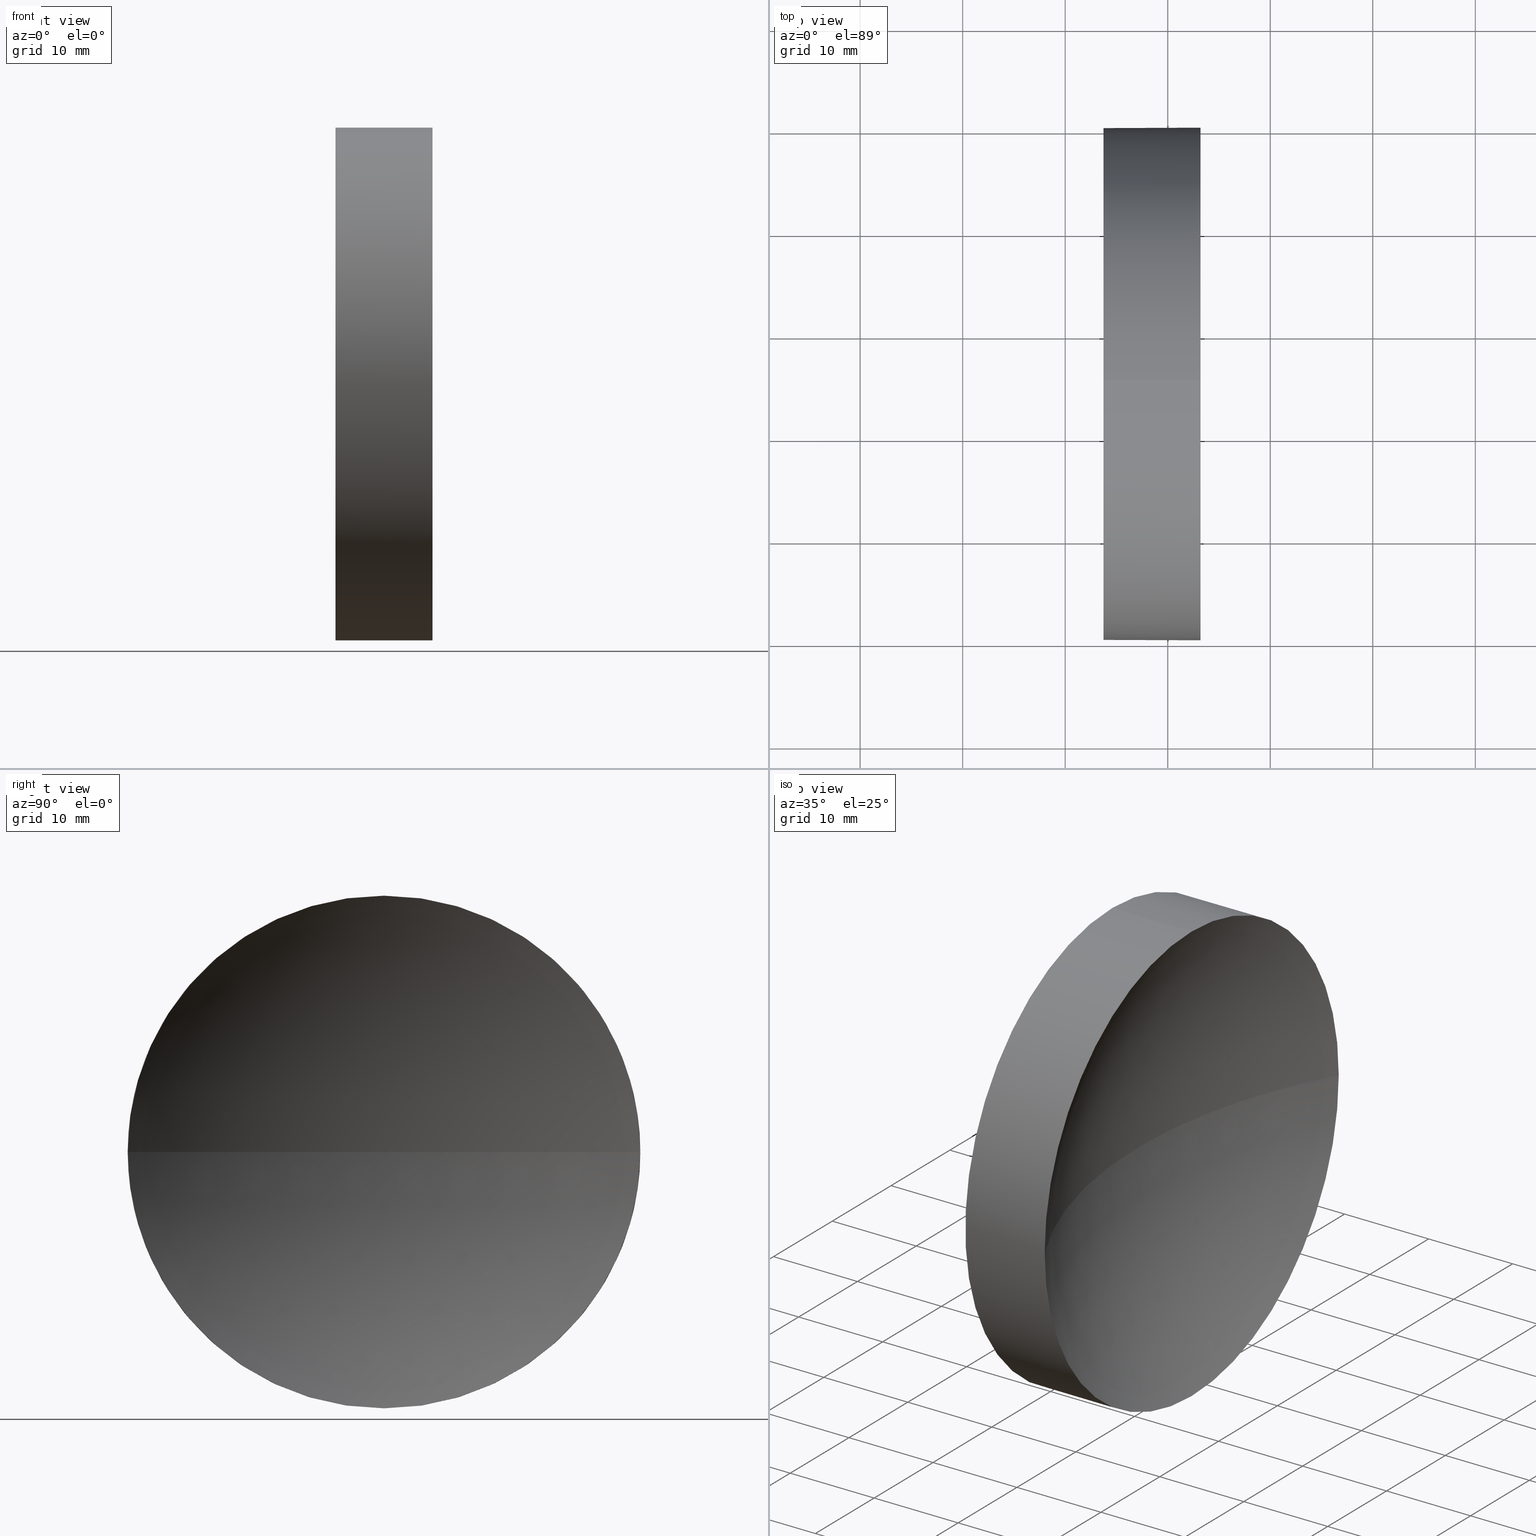
[diagram: canonical four-view strip — front | top / right | iso, engineering-drawing reading convention]
A machine part, canonical four-view strip (front | top / right | iso — engineering-drawing reading convention). The complete STEP part file that produces these views, byte-faithful:
ISO-10303-21;
HEADER;
FILE_DESCRIPTION (( 'STEP AP214' ),
    '1' );
FILE_NAME ('120056.STEP',
    '2019-06-18T01:38:16',
    ( '' ),
    ( '' ),
    'SwSTEP 2.0',
    'SolidWorks 2016',
    '' );
FILE_SCHEMA (( 'AUTOMOTIVE_DESIGN' ));
ENDSEC;

DATA;
#1 = CARTESIAN_POINT ( 'NONE',  ( 123.1943776569798400, 65.15563045701519200, 0.0000000000000000000 ) ) ;
#2 = EDGE_CURVE ( 'NONE', #184, #145, #147, .T. ) ;
#3 = ORIENTED_EDGE ( 'NONE', *, *, #128, .T. ) ;
#4 = DIRECTION ( 'NONE',  ( 0.0000000000000000000, -1.000000000000000000, 0.0000000000000000000 ) ) ;
#5 = LINE ( 'NONE', #47, #75 ) ;
#6 = STYLED_ITEM ( 'NONE', ( #46 ), #36 ) ;
#7 = ADVANCED_FACE ( 'NONE', ( #166 ), #55, .F. ) ;
#8 = AXIS2_PLACEMENT_3D ( 'NONE', #92, #180, #165 ) ;
#9 = SURFACE_SIDE_STYLE ('',( #34 ) ) ;
#10 = ADVANCED_FACE ( 'NONE', ( #50 ), #136, .F. ) ;
#11 = EDGE_LOOP ( 'NONE', ( #121, #24, #169, #28 ) ) ;
#12 = SURFACE_STYLE_USAGE ( .BOTH. , #9 ) ;
#13 = CIRCLE ( 'NONE', #8, 51.64000000000002200 ) ;
#14 = SURFACE_STYLE_FILL_AREA ( #22 ) ;
#15 = CARTESIAN_POINT ( 'NONE',  ( 105.6218371238301200, 65.15563045701519200, 0.0000000000000000000 ) ) ;
#16 = DIRECTION ( 'NONE',  ( -1.000000000000000000, -0.0000000000000000000, -0.0000000000000000000 ) ) ;
#17 = DIRECTION ( 'NONE',  ( 0.0000000000000000000, 0.0000000000000000000, 1.000000000000000000 ) ) ;
#18 =( GEOMETRIC_REPRESENTATION_CONTEXT ( 3 ) GLOBAL_UNCERTAINTY_ASSIGNED_CONTEXT ( ( #124 ) ) GLOBAL_UNIT_ASSIGNED_CONTEXT ( ( #64, #19, #132 ) ) REPRESENTATION_CONTEXT ( 'NONE', 'WORKASPACE' ) );
#19 =( NAMED_UNIT ( * ) PLANE_ANGLE_UNIT ( ) SI_UNIT ( $, .RADIAN. ) );
#20 = STYLED_ITEM ( 'NONE', ( #149 ), #39 ) ;
#21 = MECHANICAL_DESIGN_GEOMETRIC_PRESENTATION_REPRESENTATION (  '', ( #6 ), #18 ) ;
#22 = FILL_AREA_STYLE ('',( #159 ) ) ;
#23 = ORIENTED_EDGE ( 'NONE', *, *, #2, .F. ) ;
#24 = ORIENTED_EDGE ( 'NONE', *, *, #128, .F. ) ;
#25 = PRESENTATION_LAYER_ASSIGNMENT (  '', '', ( #20 ) ) ;
#26 = EDGE_CURVE ( 'NONE', #145, #160, #84, .T. ) ;
#27 =( NAMED_UNIT ( * ) PLANE_ANGLE_UNIT ( ) SI_UNIT ( $, .RADIAN. ) );
#28 = ORIENTED_EDGE ( 'NONE', *, *, #120, .T. ) ;
#29 = APPLICATION_CONTEXT ( 'automotive_design' ) ;
#30 = AXIS2_PLACEMENT_3D ( 'NONE', #72, #155, #168 ) ;
#31 = DIRECTION ( 'NONE',  ( 1.000000000000000000, 0.0000000000000000000, 0.0000000000000000000 ) ) ;
#32 = PLANE ( 'NONE',  #106 ) ;
#33 = DIRECTION ( 'NONE',  ( -1.000000000000000000, -0.0000000000000000000, -0.0000000000000000000 ) ) ;
#34 = SURFACE_STYLE_FILL_AREA ( #162 ) ;
#35 = EDGE_LOOP ( 'NONE', ( #74, #57, #65, #91, #3 ) ) ;
#36 = MANIFOLD_SOLID_BREP ( '��ת1', #158 ) ;
#37 = CARTESIAN_POINT ( 'NONE',  ( 113.7394371346435000, 65.15563045701519200, 0.0000000000000000000 ) ) ;
#38 = FACE_OUTER_BOUND ( 'NONE', #97, .T. ) ;
#39 = ADVANCED_BREP_SHAPE_REPRESENTATION ( '120056', ( #36, #163 ), #113 ) ;
#40 = AXIS2_PLACEMENT_3D ( 'NONE', #112, #95, #126 ) ;
#41 = DIRECTION ( 'NONE',  ( -1.000000000000000000, -0.0000000000000000000, -0.0000000000000000000 ) ) ;
#42 = SHAPE_DEFINITION_REPRESENTATION ( #48, #39 ) ;
#43 = EDGE_CURVE ( 'NONE', #161, #160, #5, .T. ) ;
#44 = DIRECTION ( 'NONE',  ( 0.0000000000000000000, 0.0000000000000000000, 1.000000000000000000 ) ) ;
#45 = MECHANICAL_DESIGN_GEOMETRIC_PRESENTATION_REPRESENTATION (  '', ( #20 ), #170 ) ;
#46 = PRESENTATION_STYLE_ASSIGNMENT (( #87 ) ) ;
#47 = CARTESIAN_POINT ( 'NONE',  ( 105.6218371238301200, 65.15563045701519200, 24.99999999999999300 ) ) ;
#48 = PRODUCT_DEFINITION_SHAPE ( 'NONE', 'NONE',  #137 ) ;
#49 = PRODUCT_DEFINITION_CONTEXT ( 'detailed design', #179, 'design' ) ;
#50 = FACE_OUTER_BOUND ( 'NONE', #94, .T. ) ;
#51 = EDGE_CURVE ( 'NONE', #184, #131, #114, .T. ) ;
#52 = ADVANCED_FACE ( 'NONE', ( #89 ), #142, .T. ) ;
#53 = PRODUCT_DEFINITION_FORMATION_WITH_SPECIFIED_SOURCE ( '�κ�', '', #78, .NOT_KNOWN. ) ;
#54 = CARTESIAN_POINT ( 'NONE',  ( 123.1943776569798400, 65.15563045701519200, 0.0000000000000000000 ) ) ;
#55 = SPHERICAL_SURFACE ( 'NONE', #141, 51.64000000000002200 ) ;
#56 = CARTESIAN_POINT ( 'NONE',  ( 123.1943776569798400, 90.15563045701520700, 3.061616997868383800E-015 ) ) ;
#57 = ORIENTED_EDGE ( 'NONE', *, *, #2, .T. ) ;
#58 = AXIS2_PLACEMENT_3D ( 'NONE', #1, #16, #44 ) ;
#59 = ORIENTED_EDGE ( 'NONE', *, *, #26, .F. ) ;
#60 = CARTESIAN_POINT ( 'NONE',  ( 123.1943776569798400, 65.15563045701519200, 24.99999999999999300 ) ) ;
#61 = AXIS2_PLACEMENT_3D ( 'NONE', #37, #146, #115 ) ;
#62 = CARTESIAN_POINT ( 'NONE',  ( 105.6218371238301200, 65.15563045701519200, -24.99999999999999300 ) ) ;
#63 = VERTEX_POINT ( 'NONE', #56 ) ;
#64 =( LENGTH_UNIT ( ) NAMED_UNIT ( * ) SI_UNIT ( .MILLI., .METRE. ) );
#65 = ORIENTED_EDGE ( 'NONE', *, *, #176, .F. ) ;
#66 = ADVANCED_FACE ( 'NONE', ( #173 ), #183, .T. ) ;
#67 =( NAMED_UNIT ( * ) SI_UNIT ( $, .STERADIAN. ) SOLID_ANGLE_UNIT ( ) );
#68 = DIRECTION ( 'NONE',  ( 0.0000000000000000000, 0.0000000000000000000, 1.000000000000000000 ) ) ;
#69 =( LENGTH_UNIT ( ) NAMED_UNIT ( * ) SI_UNIT ( .MILLI., .METRE. ) );
#70 = DIRECTION ( 'NONE',  ( -1.000000000000000000, -0.0000000000000000000, -0.0000000000000000000 ) ) ;
#71 = DIRECTION ( 'NONE',  ( 1.000000000000000000, 0.0000000000000000000, 0.0000000000000000000 ) ) ;
#72 = CARTESIAN_POINT ( 'NONE',  ( 168.3794371346435000, 65.15563045701519200, 0.0000000000000000000 ) ) ;
#73 = AXIS2_PLACEMENT_3D ( 'NONE', #54, #70, #17 ) ;
#74 = ORIENTED_EDGE ( 'NONE', *, *, #88, .T. ) ;
#75 = VECTOR ( 'NONE', #98, 1000.000000000000000 ) ;
#76 = AXIS2_PLACEMENT_3D ( 'NONE', #148, #41, #68 ) ;
#77 = CARTESIAN_POINT ( 'NONE',  ( 168.3794371346435000, 65.15563045701519200, 0.0000000000000000000 ) ) ;
#78 = PRODUCT ( '120056', '120056', '', ( #109 ) ) ;
#79 = ORIENTED_EDGE ( 'NONE', *, *, #26, .T. ) ;
#80 = ADVANCED_FACE ( 'NONE', ( #38 ), #32, .F. ) ;
#81 = COLOUR_RGB ( '',1.000000000000000000, 1.000000000000000000, 1.000000000000000000 ) ;
#82 = CARTESIAN_POINT ( 'NONE',  ( 116.7394371346434700, 65.15563045701519200, 0.0000000000000000000 ) ) ;
#83 = CARTESIAN_POINT ( 'NONE',  ( 123.1943776569798400, 65.15563045701519200, 0.0000000000000000000 ) ) ;
#84 = CIRCLE ( 'NONE', #61, 24.99999999999999300 ) ;
#85 = AXIS2_PLACEMENT_3D ( 'NONE', #77, #101, #130 ) ;
#86 = DIRECTION ( 'NONE',  ( 0.0000000000000000000, 0.0000000000000000000, 1.000000000000000000 ) ) ;
#87 = SURFACE_STYLE_USAGE ( .BOTH. , #118 ) ;
#88 = EDGE_CURVE ( 'NONE', #63, #184, #103, .T. ) ;
#89 = FACE_OUTER_BOUND ( 'NONE', #125, .T. ) ;
#90 = APPLICATION_PROTOCOL_DEFINITION ( 'draft international standard', 'automotive_design', 1998, #29 ) ;
#91 = ORIENTED_EDGE ( 'NONE', *, *, #43, .F. ) ;
#92 = CARTESIAN_POINT ( 'NONE',  ( 168.3794371346435000, 65.15563045701519200, 0.0000000000000000000 ) ) ;
#93 = DIRECTION ( 'NONE',  ( 0.0000000000000000000, 0.0000000000000000000, 1.000000000000000000 ) ) ;
#94 = EDGE_LOOP ( 'NONE', ( #133, #178, #153, #105 ) ) ;
#95 = DIRECTION ( 'NONE',  ( -1.000000000000000000, -0.0000000000000000000, -0.0000000000000000000 ) ) ;
#96 = AXIS2_PLACEMENT_3D ( 'NONE', #140, #33, #185 ) ;
#97 = EDGE_LOOP ( 'NONE', ( #111, #79 ) ) ;
#98 = DIRECTION ( 'NONE',  ( -1.000000000000000000, -0.0000000000000000000, -0.0000000000000000000 ) ) ;
#99 = PRODUCT_RELATED_PRODUCT_CATEGORY ( 'part', '', ( #78 ) ) ;
#100 = COLOUR_RGB ( '',1.000000000000000000, 1.000000000000000000, 1.000000000000000000 ) ;
#101 = DIRECTION ( 'NONE',  ( 0.0000000000000000000, 0.0000000000000000000, 1.000000000000000000 ) ) ;
#102 = PRESENTATION_LAYER_ASSIGNMENT (  '', '', ( #6 ) ) ;
#103 = CIRCLE ( 'NONE', #135, 24.99999999999999300 ) ;
#104 =( LENGTH_UNIT ( ) NAMED_UNIT ( * ) SI_UNIT ( .MILLI., .METRE. ) );
#105 = ORIENTED_EDGE ( 'NONE', *, *, #51, .F. ) ;
#106 = AXIS2_PLACEMENT_3D ( 'NONE', #181, #71, #138 ) ;
#107 =( NAMED_UNIT ( * ) PLANE_ANGLE_UNIT ( ) SI_UNIT ( $, .RADIAN. ) );
#108 = CARTESIAN_POINT ( 'NONE',  ( 123.1943776569798400, 65.15563045701519200, -24.99999999999999300 ) ) ;
#109 = PRODUCT_CONTEXT ( 'NONE', #29, 'mechanical' ) ;
#110 = DIRECTION ( 'NONE',  ( 0.0000000000000000000, 0.0000000000000000000, 1.000000000000000000 ) ) ;
#111 = ORIENTED_EDGE ( 'NONE', *, *, #176, .T. ) ;
#112 = CARTESIAN_POINT ( 'NONE',  ( 123.1943776569798400, 65.15563045701519200, 0.0000000000000000000 ) ) ;
#113 =( GEOMETRIC_REPRESENTATION_CONTEXT ( 3 ) GLOBAL_UNCERTAINTY_ASSIGNED_CONTEXT ( ( #182 ) ) GLOBAL_UNIT_ASSIGNED_CONTEXT ( ( #104, #107, #67 ) ) REPRESENTATION_CONTEXT ( 'NONE', 'WORKASPACE' ) );
#114 = CIRCLE ( 'NONE', #73, 24.99999999999999300 ) ;
#115 = DIRECTION ( 'NONE',  ( 0.0000000000000000000, 0.0000000000000000000, 1.000000000000000000 ) ) ;
#116 = UNCERTAINTY_MEASURE_WITH_UNIT (LENGTH_MEASURE( 1.000000000000000100E-005 ), #69, 'distance_accuracy_value', 'NONE');
#117 = AXIS2_PLACEMENT_3D ( 'NONE', #15, #152, #110 ) ;
#118 = SURFACE_SIDE_STYLE ('',( #14 ) ) ;
#119 = VECTOR ( 'NONE', #144, 1000.000000000000000 ) ;
#120 = EDGE_CURVE ( 'NONE', #131, #174, #143, .T. ) ;
#121 = ORIENTED_EDGE ( 'NONE', *, *, #186, .F. ) ;
#122 = CARTESIAN_POINT ( 'NONE',  ( 0.0000000000000000000, 0.0000000000000000000, 0.0000000000000000000 ) ) ;
#123 = EDGE_CURVE ( 'NONE', #131, #161, #151, .T. ) ;
#124 = UNCERTAINTY_MEASURE_WITH_UNIT (LENGTH_MEASURE( 1.000000000000000100E-005 ), #64, 'distance_accuracy_value', 'NONE');
#125 = EDGE_LOOP ( 'NONE', ( #23, #129, #156, #171, #59 ) ) ;
#126 = DIRECTION ( 'NONE',  ( 0.0000000000000000000, 0.0000000000000000000, 1.000000000000000000 ) ) ;
#127 = CARTESIAN_POINT ( 'NONE',  ( 113.7394371346435000, 65.15563045701519200, -24.99999999999999300 ) ) ;
#128 = EDGE_CURVE ( 'NONE', #161, #63, #157, .T. ) ;
#129 = ORIENTED_EDGE ( 'NONE', *, *, #51, .T. ) ;
#130 = DIRECTION ( 'NONE',  ( 0.0000000000000000000, -1.000000000000000000, 0.0000000000000000000 ) ) ;
#131 = VERTEX_POINT ( 'NONE', #154 ) ;
#132 =( NAMED_UNIT ( * ) SI_UNIT ( $, .STERADIAN. ) SOLID_ANGLE_UNIT ( ) );
#133 = ORIENTED_EDGE ( 'NONE', *, *, #88, .F. ) ;
#134 = APPLICATION_PROTOCOL_DEFINITION ( 'draft international standard', 'automotive_design', 1998, #179 ) ;
#135 = AXIS2_PLACEMENT_3D ( 'NONE', #83, #139, #150 ) ;
#136 = SPHERICAL_SURFACE ( 'NONE', #85, 51.64000000000002200 ) ;
#137 = PRODUCT_DEFINITION ( 'δ֪', '', #53, #49 ) ;
#138 = DIRECTION ( 'NONE',  ( 0.0000000000000000000, 0.0000000000000000000, -1.000000000000000000 ) ) ;
#139 = DIRECTION ( 'NONE',  ( -1.000000000000000000, -0.0000000000000000000, -0.0000000000000000000 ) ) ;
#140 = CARTESIAN_POINT ( 'NONE',  ( 105.6218371238301200, 65.15563045701519200, 0.0000000000000000000 ) ) ;
#141 = AXIS2_PLACEMENT_3D ( 'NONE', #172, #86, #4 ) ;
#142 = CYLINDRICAL_SURFACE ( 'NONE', #117, 24.99999999999999300 ) ;
#143 = CIRCLE ( 'NONE', #30, 51.64000000000002200 ) ;
#144 = DIRECTION ( 'NONE',  ( -1.000000000000000000, -0.0000000000000000000, -0.0000000000000000000 ) ) ;
#145 = VERTEX_POINT ( 'NONE', #127 ) ;
#146 = DIRECTION ( 'NONE',  ( -1.000000000000000000, -0.0000000000000000000, -0.0000000000000000000 ) ) ;
#147 = LINE ( 'NONE', #62, #119 ) ;
#148 = CARTESIAN_POINT ( 'NONE',  ( 113.7394371346435000, 65.15563045701519200, 0.0000000000000000000 ) ) ;
#149 = PRESENTATION_STYLE_ASSIGNMENT (( #12 ) ) ;
#150 = DIRECTION ( 'NONE',  ( 0.0000000000000000000, 0.0000000000000000000, 1.000000000000000000 ) ) ;
#151 = CIRCLE ( 'NONE', #40, 24.99999999999999300 ) ;
#152 = DIRECTION ( 'NONE',  ( -1.000000000000000000, -0.0000000000000000000, -0.0000000000000000000 ) ) ;
#153 = ORIENTED_EDGE ( 'NONE', *, *, #120, .F. ) ;
#154 = CARTESIAN_POINT ( 'NONE',  ( 123.1943776569798400, 40.15563045701518500, 0.0000000000000000000 ) ) ;
#155 = DIRECTION ( 'NONE',  ( 0.0000000000000000000, 0.0000000000000000000, -1.000000000000000000 ) ) ;
#156 = ORIENTED_EDGE ( 'NONE', *, *, #123, .T. ) ;
#157 = CIRCLE ( 'NONE', #58, 24.99999999999999300 ) ;
#158 = CLOSED_SHELL ( 'NONE', ( #66, #10, #7, #52, #80 ) ) ;
#159 = FILL_AREA_STYLE_COLOUR ( '', #81 ) ;
#160 = VERTEX_POINT ( 'NONE', #167 ) ;
#161 = VERTEX_POINT ( 'NONE', #60 ) ;
#162 = FILL_AREA_STYLE ('',( #177 ) ) ;
#163 = AXIS2_PLACEMENT_3D ( 'NONE', #122, #93, #31 ) ;
#164 =( NAMED_UNIT ( * ) SI_UNIT ( $, .STERADIAN. ) SOLID_ANGLE_UNIT ( ) );
#165 = DIRECTION ( 'NONE',  ( 0.0000000000000000000, -1.000000000000000000, -1.224646799147353200E-016 ) ) ;
#166 = FACE_OUTER_BOUND ( 'NONE', #11, .T. ) ;
#167 = CARTESIAN_POINT ( 'NONE',  ( 113.7394371346435000, 65.15563045701519200, 24.99999999999999300 ) ) ;
#168 = DIRECTION ( 'NONE',  ( -1.000000000000000000, 0.0000000000000000000, 0.0000000000000000000 ) ) ;
#169 = ORIENTED_EDGE ( 'NONE', *, *, #123, .F. ) ;
#170 =( GEOMETRIC_REPRESENTATION_CONTEXT ( 3 ) GLOBAL_UNCERTAINTY_ASSIGNED_CONTEXT ( ( #116 ) ) GLOBAL_UNIT_ASSIGNED_CONTEXT ( ( #69, #27, #164 ) ) REPRESENTATION_CONTEXT ( 'NONE', 'WORKASPACE' ) );
#171 = ORIENTED_EDGE ( 'NONE', *, *, #43, .T. ) ;
#172 = CARTESIAN_POINT ( 'NONE',  ( 168.3794371346435000, 65.15563045701519200, 0.0000000000000000000 ) ) ;
#173 = FACE_OUTER_BOUND ( 'NONE', #35, .T. ) ;
#174 = VERTEX_POINT ( 'NONE', #82 ) ;
#175 = CIRCLE ( 'NONE', #76, 24.99999999999999300 ) ;
#176 = EDGE_CURVE ( 'NONE', #160, #145, #175, .T. ) ;
#177 = FILL_AREA_STYLE_COLOUR ( '', #100 ) ;
#178 = ORIENTED_EDGE ( 'NONE', *, *, #186, .T. ) ;
#179 = APPLICATION_CONTEXT ( 'automotive_design' ) ;
#180 = DIRECTION ( 'NONE',  ( 0.0000000000000000000, -1.224646799147353200E-016, 1.000000000000000000 ) ) ;
#181 = CARTESIAN_POINT ( 'NONE',  ( 113.7394371346435000, 65.15563045701519200, 0.0000000000000000000 ) ) ;
#182 = UNCERTAINTY_MEASURE_WITH_UNIT (LENGTH_MEASURE( 1.000000000000000100E-005 ), #104, 'distance_accuracy_value', 'NONE');
#183 = CYLINDRICAL_SURFACE ( 'NONE', #96, 24.99999999999999300 ) ;
#184 = VERTEX_POINT ( 'NONE', #108 ) ;
#185 = DIRECTION ( 'NONE',  ( 0.0000000000000000000, 0.0000000000000000000, 1.000000000000000000 ) ) ;
#186 = EDGE_CURVE ( 'NONE', #63, #174, #13, .T. ) ;
ENDSEC;
END-ISO-10303-21;
